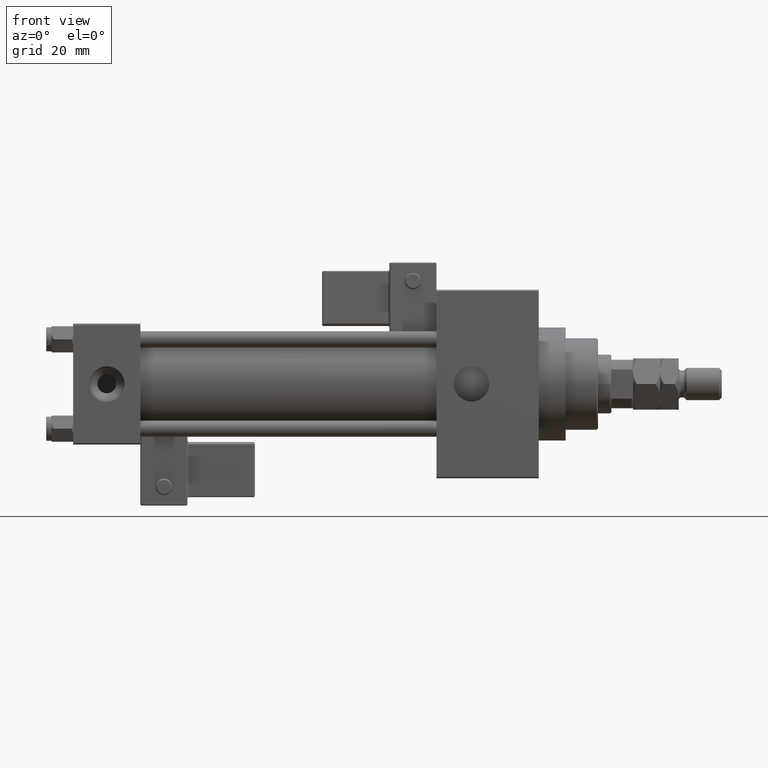
[diagram: clean part render]
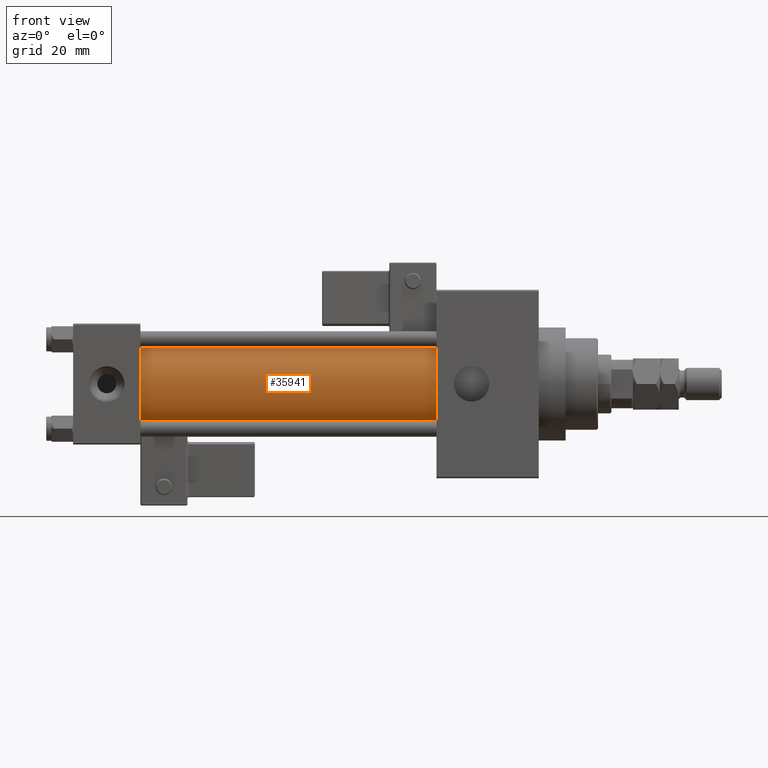
[diagram: same view with one face highlighted and labeled with its STEP entity id]
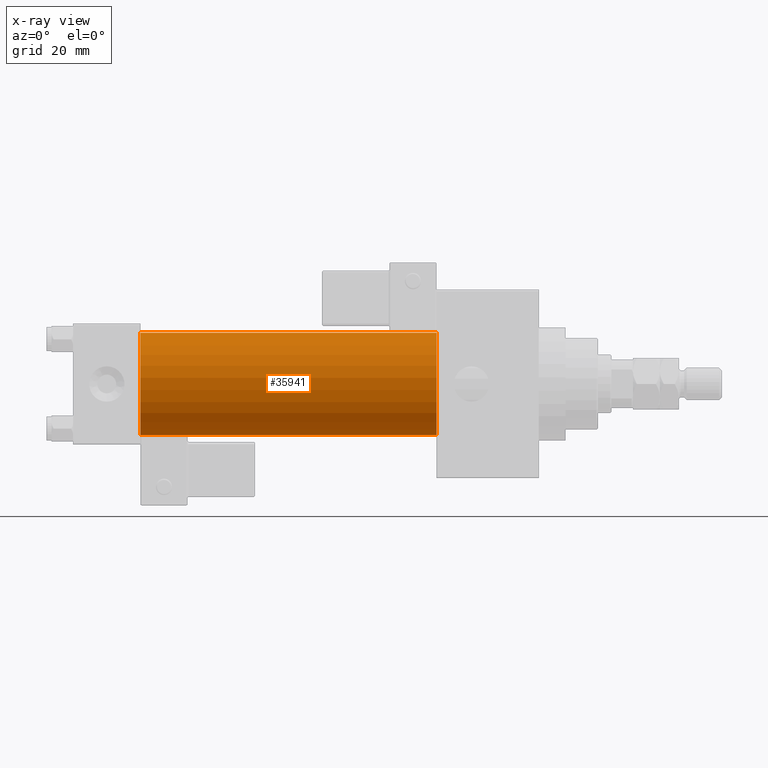
[diagram: x-ray of the same camera — body ghosted, the highlighted face saturated]
A machine part, front view. The second image highlights one B-rep face of the part: STEP entity #35941.
The next image is the same camera in x-ray: the body ghosted, the highlighted face saturated — about 0% of this face is hidden behind the body in this view.
In plain terms, the highlighted cylindrical surface (partial cylindrical patch) has radius 19 mm, axis along (-1, -0, -0).
Its self-contained STEP definition (entity closure, byte-faithful):
#166 = DIRECTION ( 'NONE',  ( 0.000000000000000000, 0.000000000000000000, 1.000000000000000000 ) ) ;
#278 = LINE ( 'NONE', #3792, #44271 ) ;
#971 = EDGE_CURVE ( 'NONE', #25664, #49857, #21078, .T. ) ;
#3056 = EDGE_CURVE ( 'NONE', #35424, #50161, #42558, .T. ) ;
#3659 = CYLINDRICAL_SURFACE ( 'NONE', #31041, 19.00000000000000000 ) ;
#3792 = CARTESIAN_POINT ( 'NONE',  ( 135.0000000000000000, -2.752562955852396712E-16, -19.00000000000000000 ) ) ;
#5868 = LINE ( 'NONE', #47096, #46936 ) ;
#6707 = ORIENTED_EDGE ( 'NONE', *, *, #27302, .F. ) ;
#11794 = AXIS2_PLACEMENT_3D ( 'NONE', #25326, #16242, #166 ) ;
#13375 = EDGE_LOOP ( 'NONE', ( #6707, #43560, #31582, #39339 ) ) ;
#16242 = DIRECTION ( 'NONE',  ( 1.000000000000000000, -0.000000000000000000, 0.000000000000000000 ) ) ;
#16605 = DIRECTION ( 'NONE',  ( -1.000000000000000000, -0.000000000000000000, -0.000000000000000000 ) ) ;
#18898 = CARTESIAN_POINT ( 'NONE',  ( 135.0000000000000000, -2.602085213965210642E-15, 19.00000000000000000 ) ) ;
#19971 = DIRECTION ( 'NONE',  ( -1.000000000000000000, -0.000000000000000000, -0.000000000000000000 ) ) ;
#21078 = CIRCLE ( 'NONE', #51907, 19.00000000000000000 ) ;
#22514 = DIRECTION ( 'NONE',  ( 1.000000000000000000, 0.000000000000000000, 0.000000000000000000 ) ) ;
#24264 = CARTESIAN_POINT ( 'NONE',  ( 24.99999999999999289, -2.602085213965210642E-15, 19.00000000000000000 ) ) ;
#24267 = CARTESIAN_POINT ( 'NONE',  ( 135.0000000000000000, -2.602085213965210642E-15, 0.000000000000000000 ) ) ;
#24789 = DIRECTION ( 'NONE',  ( 0.000000000000000000, 0.000000000000000000, 1.000000000000000000 ) ) ;
#25326 = CARTESIAN_POINT ( 'NONE',  ( 24.99999999999999289, -2.602085213965210642E-15, 0.000000000000000000 ) ) ;
#25664 = VERTEX_POINT ( 'NONE', #18898 ) ;
#26805 = DIRECTION ( 'NONE',  ( 0.000000000000000000, 0.000000000000000000, -1.000000000000000000 ) ) ;
#27302 = EDGE_CURVE ( 'NONE', #49857, #50161, #278, .T. ) ;
#30051 = EDGE_CURVE ( 'NONE', #25664, #35424, #5868, .T. ) ;
#31041 = AXIS2_PLACEMENT_3D ( 'NONE', #24267, #19971, #24789 ) ;
#31582 = ORIENTED_EDGE ( 'NONE', *, *, #30051, .T. ) ;
#35424 = VERTEX_POINT ( 'NONE', #24264 ) ;
#35941 = ADVANCED_FACE ( 'NONE', ( #40327 ), #3659, .T. ) ;
#36885 = CARTESIAN_POINT ( 'NONE',  ( 135.0000000000000000, -2.752562955852396712E-16, -19.00000000000000000 ) ) ;
#39339 = ORIENTED_EDGE ( 'NONE', *, *, #3056, .T. ) ;
#40327 = FACE_OUTER_BOUND ( 'NONE', #13375, .T. ) ;
#41351 = CARTESIAN_POINT ( 'NONE',  ( 24.99999999999999289, -2.752562955852396712E-16, -19.00000000000000000 ) ) ;
#42262 = DIRECTION ( 'NONE',  ( -1.000000000000000000, -0.000000000000000000, -0.000000000000000000 ) ) ;
#42558 = CIRCLE ( 'NONE', #11794, 19.00000000000000000 ) ;
#43560 = ORIENTED_EDGE ( 'NONE', *, *, #971, .F. ) ;
#44271 = VECTOR ( 'NONE', #16605, 1000.000000000000000 ) ;
#46936 = VECTOR ( 'NONE', #42262, 1000.000000000000000 ) ;
#47096 = CARTESIAN_POINT ( 'NONE',  ( 135.0000000000000000, -2.602085213965210642E-15, 19.00000000000000000 ) ) ;
#47158 = CARTESIAN_POINT ( 'NONE',  ( 135.0000000000000000, -2.602085213965210642E-15, 0.000000000000000000 ) ) ;
#49857 = VERTEX_POINT ( 'NONE', #36885 ) ;
#50161 = VERTEX_POINT ( 'NONE', #41351 ) ;
#51907 = AXIS2_PLACEMENT_3D ( 'NONE', #47158, #22514, #26805 ) ;